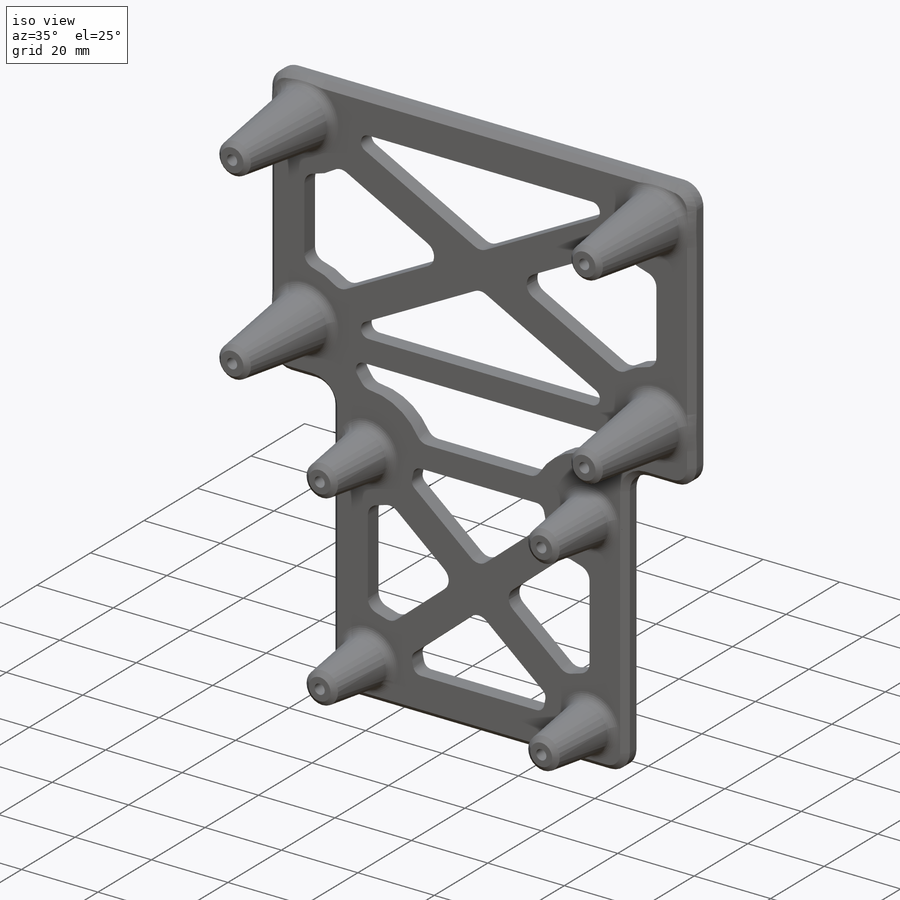
[diagram: iso view]
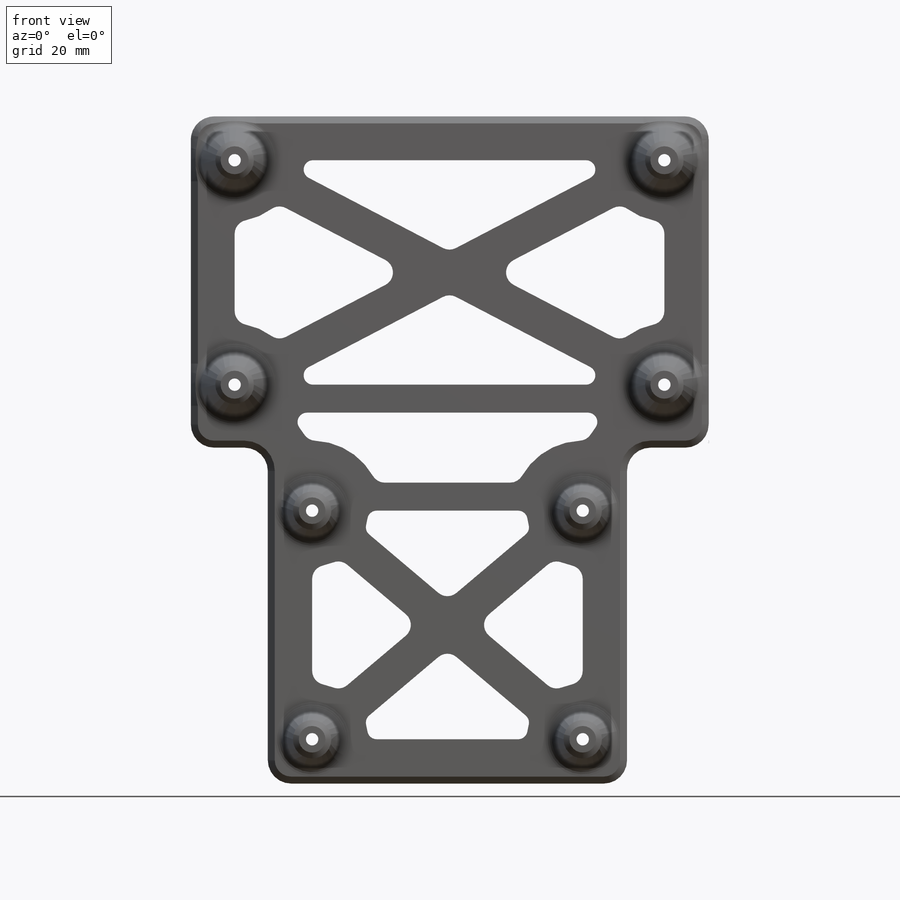
[diagram: front view]
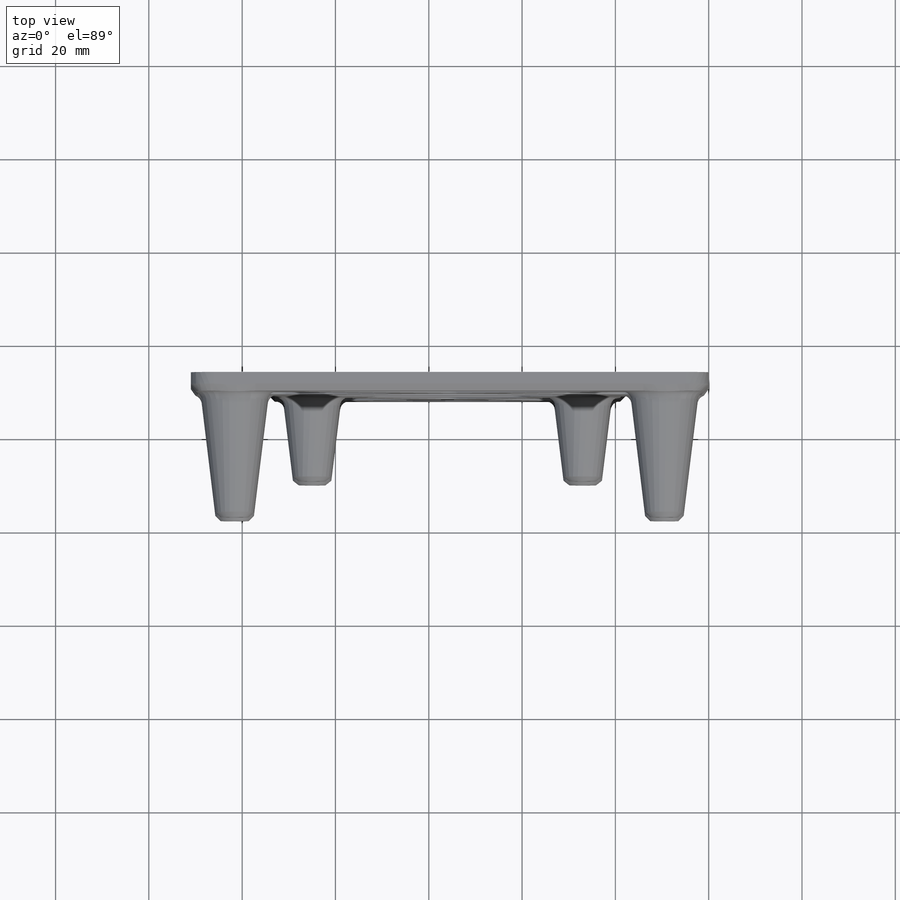
[diagram: top view]
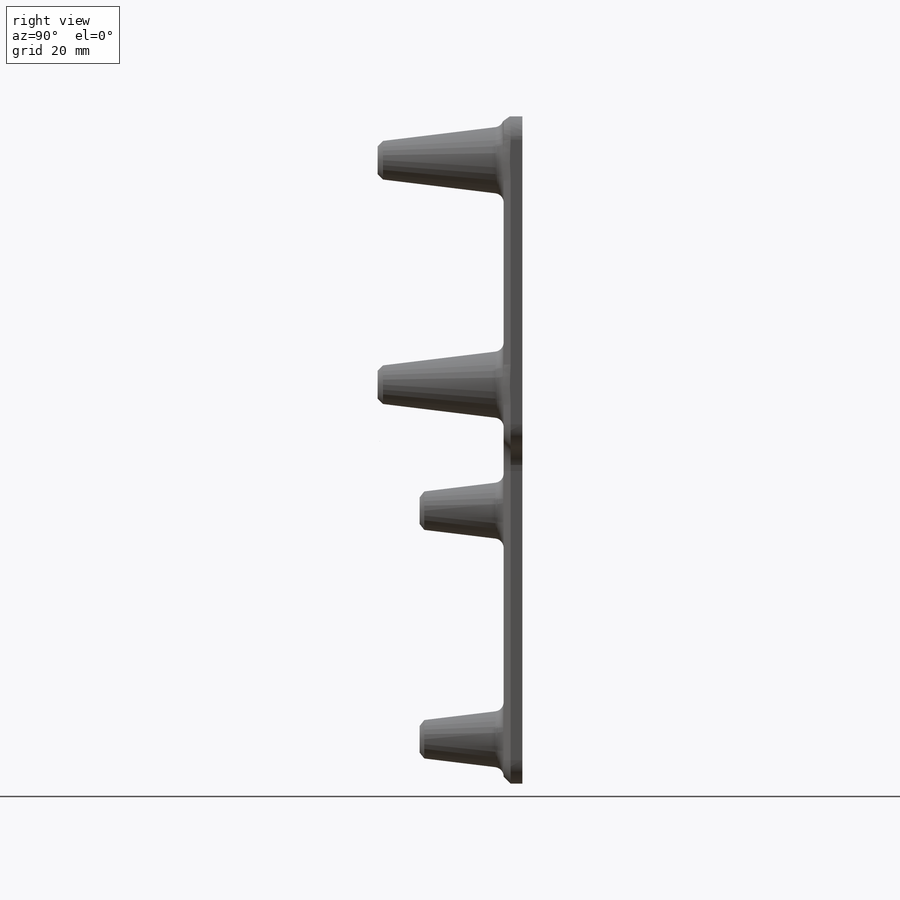
[diagram: right view]
SOLIDWORKS PART (.sldprt)
format: sldprt  version: not decoded by parser v0  size: 933,888 bytes
history: native  units: mm
features: fillet x8, sketch x5, extrude x3, plane x2, chamfer x2, cut_extrude x2, material x1 (+13 scaffold rows collapsed)
feature tree (36):
  scaffold x13  (default folders/planes/origin — collapsed)
  material  "ABS"
  sketch  "Sketch1"  dims[c1.D1=8.0mm c1.D2=10.0mm c1.D3=6.0mm c1.D4=6.0mm c2.D2=4.5mm c2.D5=3.5mm c2.D6=14.0mm c3.D2=13.9mm c3.D3=8.4mm c3.D4=8.45mm c4.D2=14.0mm c4.D3=48.11mm c4.D4=92.11mm c4.D5=49.0mm c4.D6=58.0mm c4.D7=9.5mm c4.D8=9.5mm c4.D9=9.5mm c4.D10=13.5mm c4.D11=9.5mm c4.D12=9.5mm c4.D13=9.5mm c5.D2=13.5mm c5.D12=71.0mm c5.D11=111.0mm c5.D9=16.5mm c5.D14=9.5mm]
  extrude  "Boss-Extrude1"  Depth=4mm
  plane  "Plane1"  Offset=27mm
  plane  "Plane2"  Offset=18mm
  sketch  "Sketch2"  dims[D1=8.0mm]
  extrude  "Boss-Extrude2"  [1 undecoded]
  sketch  "Sketch3"  dims[D1=8.0mm]
  extrude  "Boss-Extrude3"  [1 undecoded]
  fillet  "Fillet1"  Radius=2mm
  fillet  "Fillet2"  Radius=5mm
  chamfer  "Chamfer1"  Distance=1.5mm Angle=45deg
  sketch  "Sketch4"  dims[D1=2.65mm]
  cut_extrude  "Cut-Extrude1"  [1 undecoded]
  chamfer  "Chamfer2"  Distance=1mm Angle=45deg
  sketch  "Sketch5"  dims[c1.D7=25.0mm c1.D8=22.0mm c1.D9=3.0mm c1.D10=3.0mm c1.D11=~11.303478mm c2.D9=15.0mm c2.D1=8.0mm c2.D2=8.0mm c2.D3=8.0mm c2.D4=8.0mm c2.D5=8.0mm c2.D6=8.0mm c2.D8=25.0mm c3.D1=6.0mm c3.D2=6.0mm c3.D21=4.0mm c3.D3=8.0mm c3.D4=8.0mm c3.D5=8.0mm c3.D6=4.0mm c3.D8=4.0mm c4.D1=4.0mm c4.D2=4.0mm c4.D3=4.0mm c4.D4=4.0mm c4.D5=4.0mm c4.D6=4.0mm c4.D7=4.0mm c4.D8=4.0mm c4.D9=8.0mm c4.D10=8.0mm c4.D11=4.0mm c4.D12=4.0mm c4.D13=4.0mm c4.D14=4.0mm c4.D15=4.0mm c4.D16=4.0mm c4.D17=4.0mm c4.D18=4.0mm c4.D19=10.0mm c4.D20=8.0mm c5.D9=6.0mm c5.D10=6.0mm c5.D19=6.0mm c5.D20=6.0mm c5.D21=6.0mm c5.D22=6.0mm c5.D23=6.0mm]
  cut_extrude  "Cut-Extrude2"  Depth=10mm
  fillet  "Fillet3"  Radius=3mm
  fillet  "Fillet4"  Radius=2mm
  fillet  "Fillet5"  Radius=2mm
  fillet  "Fillet6"  Radius=2mm
  fillet  "Fillet7"  Radius=2mm
  fillet  "Fillet8"  Radius=2mm
decode coverage: 17 of 20 modeling features carry decoded parameters
note: ~ marks probable driven/reference dimensions
note: 3 parameter values undecoded
summary: no parameter record found for 3 features
note: suppression state not decoded; provenance and decode notes live in map.json
